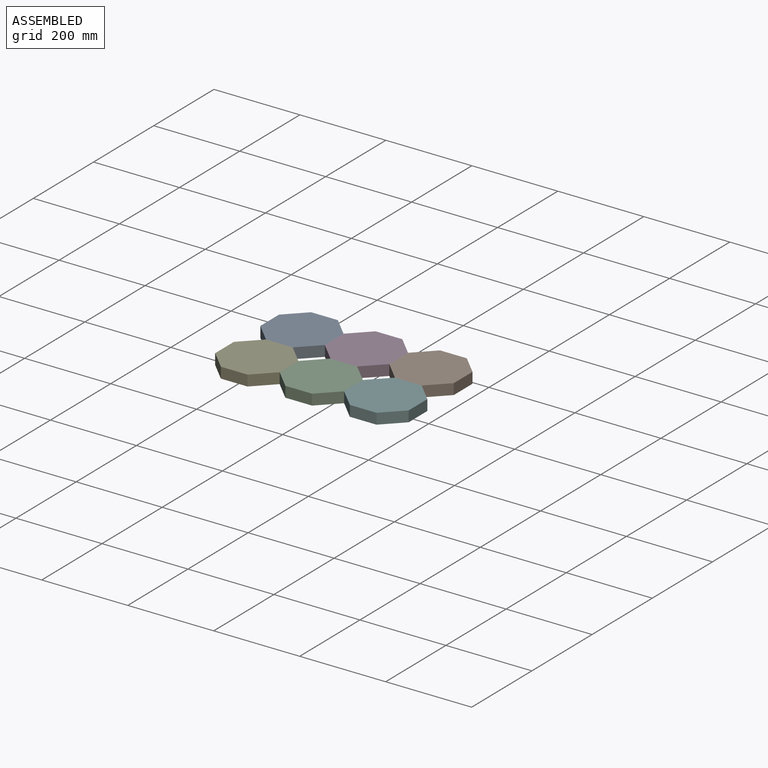
[diagram: assembled view]
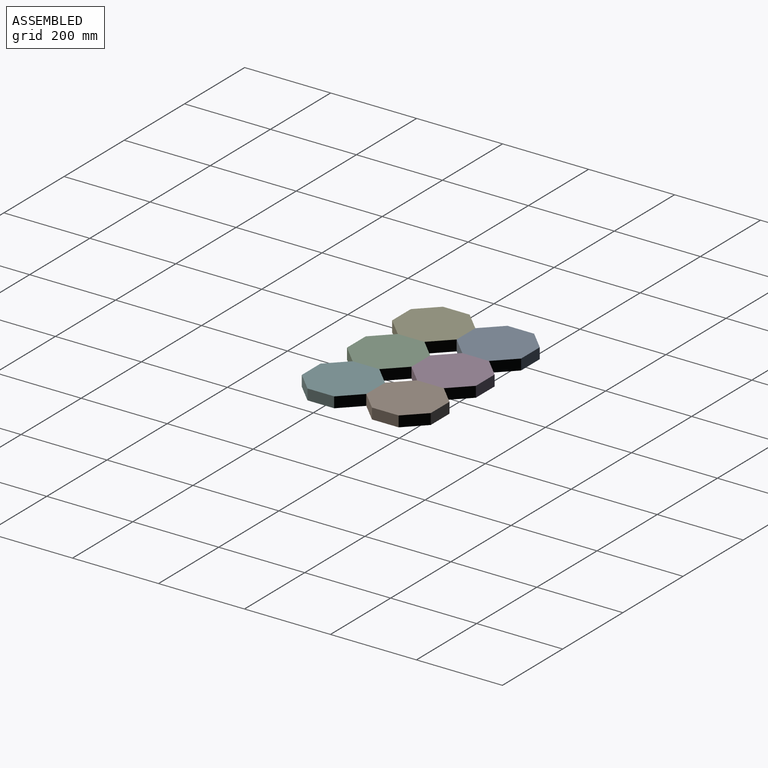
[diagram: assembled view, second angle]
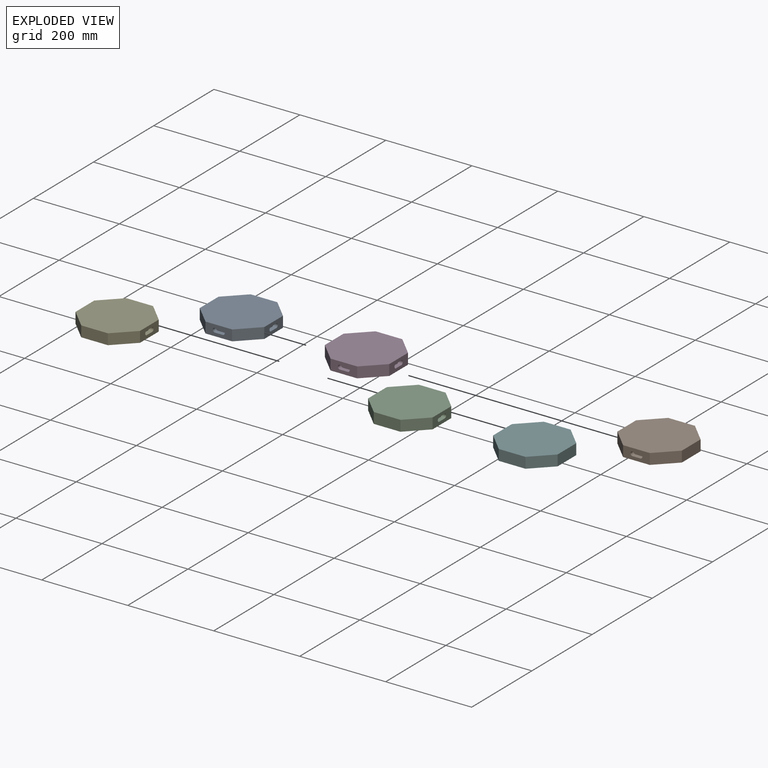
[diagram: exploded view]
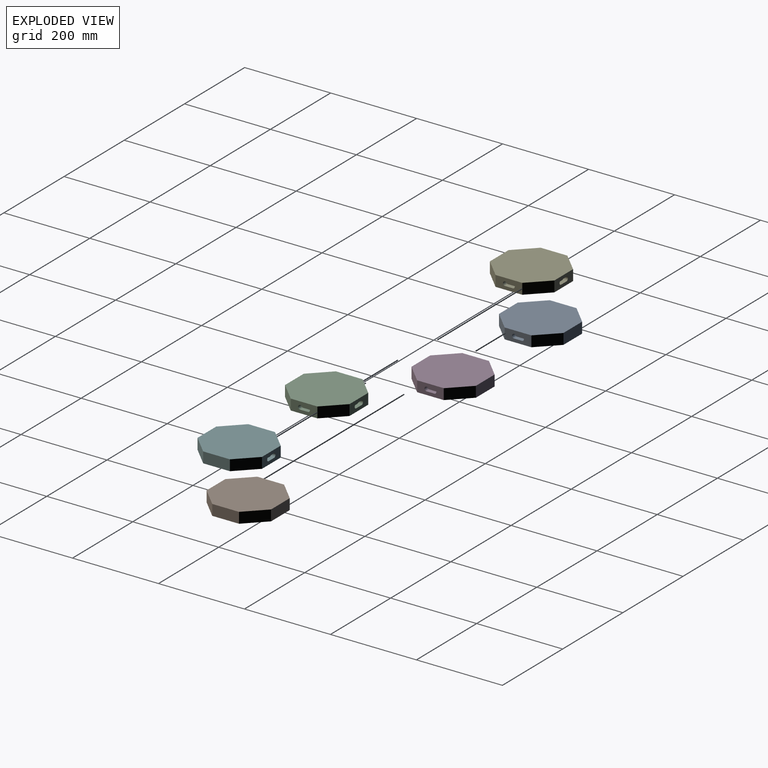
[diagram: exploded view, second angle]
ASSEMBLY  parts=6 mates=5
PART A: 20 faces, bbox 150x150x25 mm
  f0: plane 62.13x25mm, normal (0,1,0), area 1304.1mm2, adj f2,f7,f8,f9,f15,f16,f17,f18
  f1: plane 62.13x25mm, normal (1,0,0), area 1304.1mm2, adj f6,f7,f8,f9,f10,f11,f12,f13
  f2: plane 43.93x43.93mm, normal (-0.71,0.71,0), area 1553.3mm2, adj f0,f3,f8,f9
  f3: plane 62.13x25mm, normal (-1,0,0), area 1553.3mm2, adj f2,f4,f8,f9
  f4: plane 43.93x43.93mm, normal (-0.71,-0.71,0), area 1553.3mm2, adj f3,f5,f8,f9
  f5: plane 62.13x25mm, normal (0,-1,0), area 1553.3mm2, adj f4,f6,f8,f9
  f6: plane 43.93x43.93mm, normal (0.71,-0.71,0), area 1553.3mm2, adj f1,f5,f8,f9
  f7: plane 43.93x43.93mm, normal (0.71,0.71,0), area 1553.3mm2, adj f0,f1,f8,f9
  f8: plane 150x150mm, normal (0,0,1), area 18639.6mm2, adj f0,f1,f2,f3,f4,f5,f6,f7
  f9: plane 150x150mm, normal (0,0,-1), area 18639.6mm2, adj f0,f1,f2,f3,f4,f5,f6,f7
  f10: plane 20x10mm, normal (0,0,-1), area 200mm2, adj f1,f11,f13,f14
  f11: cylinder r=5mm len=10mm, axis (1,0,0), area 133mm2, adj f1,f10,f12,f14
  f12: plane 20x10mm, normal (0,0,1), area 200mm2, adj f1,f11,f13,f14
  f13: cylinder r=5mm len=10mm, axis (1,0,0), area 133mm2, adj f1,f10,f12,f14
  f14: plane 27.62x9.71mm, normal (1,0,0), area 249.2mm2, adj f10,f11,f12,f13
  f15: plane 20x10mm, normal (0,0,-1), area 200mm2, adj f0,f16,f18,f19
  f16: cylinder r=5mm len=10mm, axis (0,1,0), area 133mm2, adj f0,f15,f17,f19
  f17: plane 20x10mm, normal (0,0,1), area 200mm2, adj f0,f16,f18,f19
  f18: cylinder r=5mm len=10mm, axis (0,1,0), area 133mm2, adj f0,f15,f17,f19
  f19: plane 27.62x9.71mm, normal (0,1,0), area 249.2mm2, adj f15,f16,f17,f18
PART B: same geometry as A
PART C: 25 faces, bbox 150x150x25 mm
  f0: plane 62.13x25mm, normal (-1,0,0), area 1304.1mm2, adj f3,f4,f8,f9,f20,f21,f22,f23
  f1: plane 62.13x25mm, normal (0,1,0), area 1304.1mm2, adj f3,f7,f8,f9,f15,f16,f17,f18
  f2: plane 62.13x25mm, normal (1,0,0), area 1304.1mm2, adj f6,f7,f8,f9,f10,f11,f12,f13
  f3: plane 43.93x43.93mm, normal (-0.71,0.71,0), area 1553.3mm2, adj f0,f1,f8,f9
  f4: plane 43.93x43.93mm, normal (-0.71,-0.71,0), area 1553.3mm2, adj f0,f5,f8,f9
  f5: plane 62.13x25mm, normal (0,-1,0), area 1553.3mm2, adj f4,f6,f8,f9
  f6: plane 43.93x43.93mm, normal (0.71,-0.71,0), area 1553.3mm2, adj f2,f5,f8,f9
  f7: plane 43.93x43.93mm, normal (0.71,0.71,0), area 1553.3mm2, adj f1,f2,f8,f9
  f8: plane 150x150mm, normal (0,0,1), area 18639.6mm2, adj f0,f1,f2,f3,f4,f5,f6,f7
  f9: plane 150x150mm, normal (0,0,-1), area 18639.6mm2, adj f0,f1,f2,f3,f4,f5,f6,f7
  f10: plane 20x10mm, normal (0,0,-1), area 200mm2, adj f2,f11,f13,f14
  f11: cylinder r=5mm len=10mm, axis (1,0,0), area 133mm2, adj f2,f10,f12,f14
  f12: plane 20x10mm, normal (0,0,1), area 200mm2, adj f2,f11,f13,f14
  f13: cylinder r=5mm len=10mm, axis (1,0,0), area 133mm2, adj f2,f10,f12,f14
  f14: plane 27.62x9.71mm, normal (1,0,0), area 249.2mm2, adj f10,f11,f12,f13
  f15: plane 20x10mm, normal (0,0,-1), area 200mm2, adj f1,f16,f18,f19
  f16: cylinder r=5mm len=10mm, axis (0,1,0), area 133mm2, adj f1,f15,f17,f19
  f17: plane 20x10mm, normal (0,0,1), area 200mm2, adj f1,f16,f18,f19
  f18: cylinder r=5mm len=10mm, axis (0,1,0), area 133mm2, adj f1,f15,f17,f19
  f19: plane 27.62x9.71mm, normal (0,1,0), area 249.2mm2, adj f15,f16,f17,f18
  f20: plane 20x10mm, normal (0,0,-1), area 200mm2, adj f0,f21,f23,f24
  f21: cylinder r=5mm len=10mm, axis (-1,0,0), area 133mm2, adj f0,f20,f22,f24
  f22: plane 20x10mm, normal (0,0,1), area 200mm2, adj f0,f21,f23,f24
  f23: cylinder r=5mm len=10mm, axis (-1,0,0), area 133mm2, adj f0,f20,f22,f24
  f24: plane 27.62x9.71mm, normal (-1,0,0), area 249.2mm2, adj f20,f21,f22,f23
PART D: same geometry as C
PART E: same geometry as A
PART F: same geometry as A
PLACE A rot(axis=(1,0,0),180deg) t=(0,150,25)mm
PLACE B rot(axis=(0,0,-1),180deg) t=(300,150,0)mm
PLACE C t=(-76.77,-12.56,0)mm
PLACE D rot(axis=(1,0,0),180deg) t=(-76.77,162.56,25)mm
PLACE E at identity
PLACE F rot(axis=(0,0,1),90deg) t=(300,0,0)mm
MATE fastened D.f0 <-> A.f1  axis (-1,0,0) through (75,150,12.5)mm
MATE fastened F.f0 <-> C.f2  axis (-1,0,0) through (225,0,12.5)mm
MATE fastened C.f0 <-> E.f1  axis (-1,0,0) through (75,0,12.5)mm
MATE fastened B.f1 <-> D.f2  axis (-1,0,0) through (225,150,12.5)mm
MATE fastened A.f0 <-> E.f0  axis (0,-1,0) through (0,75,12.5)mm
